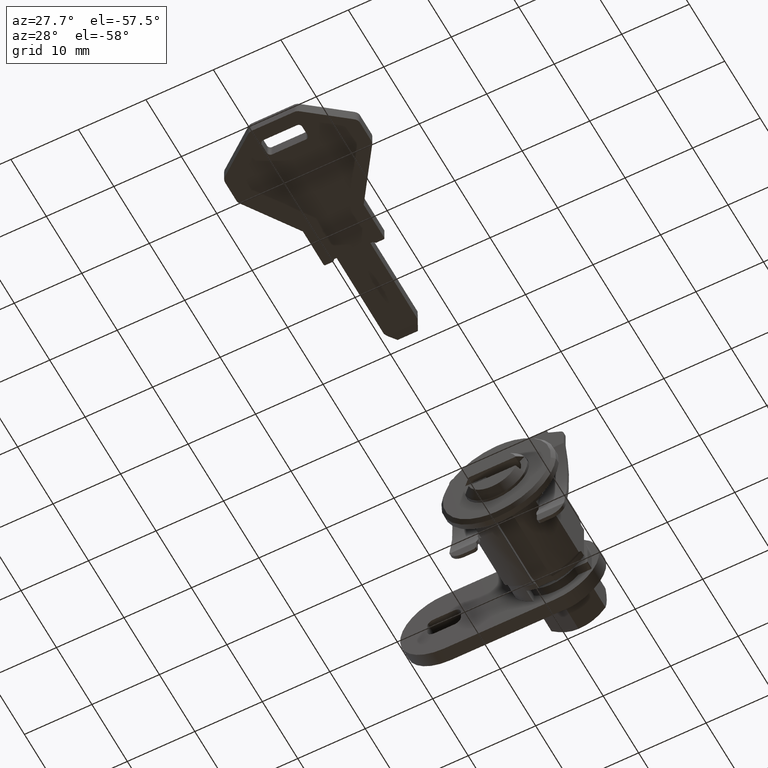
[diagram: clean part render]
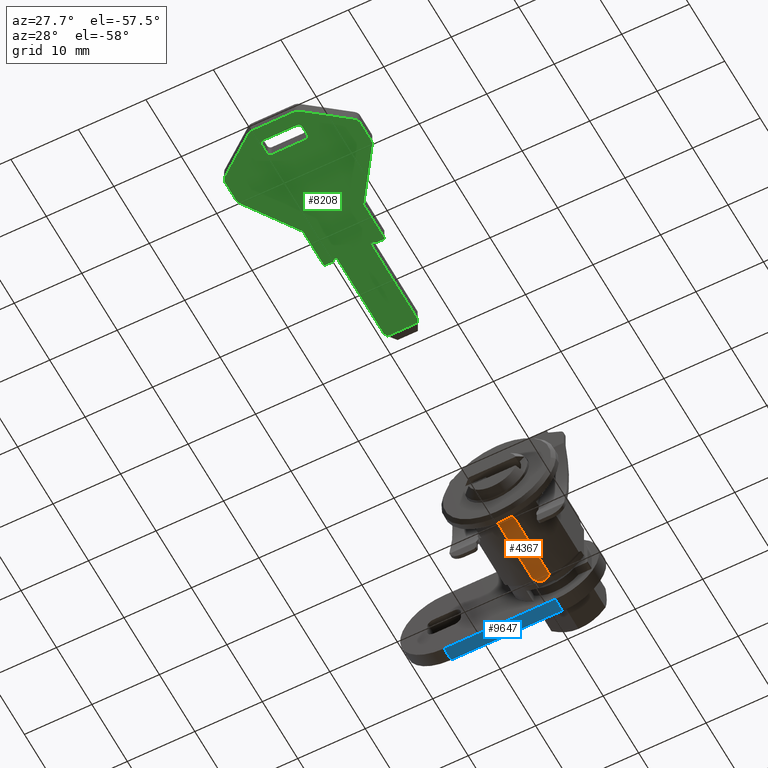
[diagram: same view with three faces highlighted in distinct colors, each labeled with its STEP entity id]
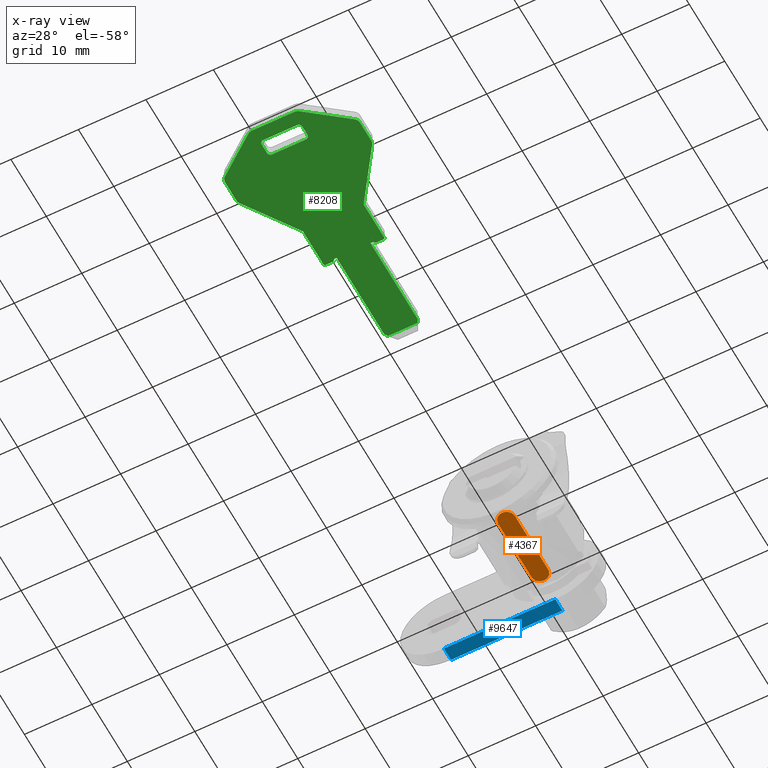
[diagram: x-ray of the same camera — body ghosted, the three highlighted faces saturated]
A machine part, auxiliary view with three faces highlighted in distinct colors.
The next image is the same camera in x-ray (body ghosted, the three faces saturated) — at least one of them is partly hidden behind the body in this view.
Their STEP definitions:

[orange] entity #4367 — the highlighted face is a freeform B-spline surface patch.
#4310=CARTESIAN_POINT('',(0.908092522967564,1.374874995154513,-6.249999999699271));
#4311=CARTESIAN_POINT('',(13.941907794873030,1.374874995154513,-6.249999999699271));
#4312=CARTESIAN_POINT('',(0.908092522967564,-1.374875062209704,-6.249999999699271));
#4313=CARTESIAN_POINT('',(13.941907794873030,-1.374875062209704,-6.249999999699271));
#4314=B_SPLINE_SURFACE_WITH_KNOTS('',1,1,((#4310,#4312),(#4311,#4313)),.UNSPECIFIED.,.F.,.F.,.U.,(2,2),(2,2),(0.0,13.033815271905469),(0.0,2.749750057364218),.UNSPECIFIED.);
#4315=CARTESIAN_POINT('',(12.099999999999000,-1.249999999999910,-6.249999999699220));
#4316=VERTEX_POINT('',#4315);
#4317=CARTESIAN_POINT('',(2.749999999999900,-1.249999999999966,-6.249999999699220));
#4318=VERTEX_POINT('',#4317);
#4319=CARTESIAN_POINT('',(12.099999999999000,-1.249999999999910,-6.249999999699220));
#4320=CARTESIAN_POINT('',(2.749999999999900,-1.249999999999966,-6.249999999699220));
#4321=QUASI_UNIFORM_CURVE('',1,(#4319,#4320),.UNSPECIFIED.,.F.,.U.);
#4322=EDGE_CURVE('',#4316,#4318,#4321,.T.);
#4323=ORIENTED_EDGE('',*,*,#4322,.T.);
#4324=CARTESIAN_POINT('',(2.749999999999885,1.249999999999976,-6.249999999699220));
#4325=VERTEX_POINT('',#4324);
#4326=CARTESIAN_POINT('',(2.749999999999885,-1.249999999999965,-6.249999999699220));
#4327=CARTESIAN_POINT('',(2.028312163512877,-1.249999999999966,-6.249999999699221));
#4328=CARTESIAN_POINT('',(1.667468245269368,-0.624999999999989,-6.249999999699220));
#4329=CARTESIAN_POINT('',(1.306624327025854,-4.606892E-015,-6.249999999699221));
#4330=CARTESIAN_POINT('',(1.667468245269360,0.624999999999985,-6.249999999699220));
#4331=CARTESIAN_POINT('',(2.028312163512867,1.249999999999975,-6.249999999699221));
#4332=CARTESIAN_POINT('',(2.749999999999885,1.249999999999975,-6.249999999699220));
#4340=(BOUNDED_CURVE()B_SPLINE_CURVE(2,(#4326,#4327,#4328,#4329,#4330,#4331,#4332),.UNSPECIFIED.,.F.,.U.)B_SPLINE_CURVE_WITH_KNOTS((3,2,2,3),(0.0,0.333333333333333,0.666666666666667,1.0),.UNSPECIFIED.)CURVE()GEOMETRIC_REPRESENTATION_ITEM()RATIONAL_B_SPLINE_CURVE((1.0,0.866025403784441,1.0,0.866025403784441,1.0,0.866025403784441,1.0))REPRESENTATION_ITEM(''));
#4341=EDGE_CURVE('',#4318,#4325,#4340,.T.);
#4342=ORIENTED_EDGE('',*,*,#4341,.T.);
#4343=CARTESIAN_POINT('',(12.099999999999000,1.250000000000000,-6.249999999699220));
#4344=VERTEX_POINT('',#4343);
#4345=CARTESIAN_POINT('',(2.749999999999885,1.249999999999976,-6.249999999699220));
#4346=CARTESIAN_POINT('',(12.099999999999000,1.250000000000000,-6.249999999699220));
#4347=QUASI_UNIFORM_CURVE('',1,(#4345,#4346),.UNSPECIFIED.,.F.,.U.);
#4348=EDGE_CURVE('',#4325,#4344,#4347,.T.);
#4349=ORIENTED_EDGE('',*,*,#4348,.T.);
#4350=CARTESIAN_POINT('',(12.099999999999000,1.250000000000000,-6.249999999699220));
#4351=CARTESIAN_POINT('',(13.349999999998914,1.249999999999919,-6.249999999699220));
#4352=CARTESIAN_POINT('',(13.349999999998911,4.717247E-015,-6.249999999699220));
#4353=CARTESIAN_POINT('',(13.349999999998914,-1.249999999999909,-6.249999999699220));
#4354=CARTESIAN_POINT('',(12.099999999999000,-1.249999999999909,-6.249999999699220));
#4362=(BOUNDED_CURVE()B_SPLINE_CURVE(2,(#4350,#4351,#4352,#4353,#4354),.UNSPECIFIED.,.F.,.U.)B_SPLINE_CURVE_WITH_KNOTS((3,2,3),(0.0,0.500000000000000,1.0),.UNSPECIFIED.)CURVE()GEOMETRIC_REPRESENTATION_ITEM()RATIONAL_B_SPLINE_CURVE((1.0,0.707106781186547,1.0,0.707106781186547,1.0))REPRESENTATION_ITEM(''));
#4363=EDGE_CURVE('',#4344,#4316,#4362,.T.);
#4364=ORIENTED_EDGE('',*,*,#4363,.T.);
#4365=EDGE_LOOP('',(#4323,#4342,#4349,#4364));
#4366=FACE_OUTER_BOUND('',#4365,.T.);
#4367=ADVANCED_FACE('',(#4366),#4314,.T.);

[blue] entity #9647 — the highlighted face is a freeform B-spline surface patch.
#8953=CARTESIAN_POINT('',(16.500000000000000,16.499999999999151,-6.499999999799400));
#8954=VERTEX_POINT('',#8953);
#8970=CARTESIAN_POINT('',(16.500000000000000,-7.685801E-013,-6.500000000143859));
#8971=VERTEX_POINT('',#8970);
#8972=CARTESIAN_POINT('',(16.500000000000000,-7.685801E-013,-6.500000000143859));
#8973=CARTESIAN_POINT('',(16.500000000000000,16.499999999999151,-6.499999999799400));
#8974=QUASI_UNIFORM_CURVE('',1,(#8972,#8973),.UNSPECIFIED.,.F.,.U.);
#8975=EDGE_CURVE('',#8971,#8954,#8974,.T.);
#9191=CARTESIAN_POINT('',(18.500000000000000,-7.685801E-013,-6.500000000143859));
#9192=VERTEX_POINT('',#9191);
#9208=CARTESIAN_POINT('',(18.500000000000000,16.499999999999151,-6.499999999799400));
#9209=VERTEX_POINT('',#9208);
#9210=CARTESIAN_POINT('',(18.500000000000000,-7.685801E-013,-6.500000000143859));
#9211=CARTESIAN_POINT('',(18.500000000000000,16.499999999999151,-6.499999999799400));
#9212=QUASI_UNIFORM_CURVE('',1,(#9210,#9211),.UNSPECIFIED.,.F.,.U.);
#9213=EDGE_CURVE('',#9192,#9209,#9212,.T.);
#9480=CARTESIAN_POINT('',(18.500000000000000,16.499999999999151,-6.499999999799400));
#9481=CARTESIAN_POINT('',(16.500000000000000,16.499999999999151,-6.499999999799400));
#9482=QUASI_UNIFORM_CURVE('',1,(#9480,#9481),.UNSPECIFIED.,.F.,.U.);
#9483=EDGE_CURVE('',#9209,#8954,#9482,.T.);
#9632=CARTESIAN_POINT('',(16.400100003876389,-0.824174968020565,-6.499999999799400));
#9633=CARTESIAN_POINT('',(18.599900049767790,-0.824174968020565,-6.499999999799400));
#9634=CARTESIAN_POINT('',(16.400100003876389,17.324175410583440,-6.499999999799400));
#9635=CARTESIAN_POINT('',(18.599900049767790,17.324175410583440,-6.499999999799400));
#9636=B_SPLINE_SURFACE_WITH_KNOTS('',1,1,((#9632,#9634),(#9633,#9635)),.UNSPECIFIED.,.F.,.F.,.U.,(2,2),(2,2),(0.0,2.199800045891404),(0.0,18.148350378604000),.UNSPECIFIED.);
#9637=ORIENTED_EDGE('',*,*,#8975,.T.);
#9638=ORIENTED_EDGE('',*,*,#9483,.F.);
#9639=ORIENTED_EDGE('',*,*,#9213,.F.);
#9640=CARTESIAN_POINT('',(18.500000000000000,-7.685801E-013,-6.500000000143859));
#9641=CARTESIAN_POINT('',(16.500000000000000,-7.685801E-013,-6.500000000143859));
#9642=QUASI_UNIFORM_CURVE('',1,(#9640,#9641),.UNSPECIFIED.,.F.,.U.);
#9643=EDGE_CURVE('',#9192,#8971,#9642,.T.);
#9644=ORIENTED_EDGE('',*,*,#9643,.T.);
#9645=EDGE_LOOP('',(#9637,#9638,#9639,#9644));
#9646=FACE_OUTER_BOUND('',#9645,.T.);
#9647=ADVANCED_FACE('',(#9646),#9636,.F.);

[green] entity #8208 — the highlighted face is a freeform B-spline surface patch.
#6884=CARTESIAN_POINT('',(-26.804951252770600,-2.344554117826425,-0.899999999849697));
#6885=VERTEX_POINT('',#6884);
#6891=CARTESIAN_POINT('',(-26.804951253183500,2.114778544594520,-0.900000000000000));
#6892=VERTEX_POINT('',#6891);
#6893=CARTESIAN_POINT('',(-26.804951253183500,2.114778544594520,-0.900000000000000));
#6894=CARTESIAN_POINT('',(-26.804951252770600,-2.344554117826425,-0.899999999849697));
#6895=QUASI_UNIFORM_CURVE('',1,(#6893,#6894),.UNSPECIFIED.,.F.,.U.);
#6896=EDGE_CURVE('',#6892,#6885,#6895,.T.);
#6927=CARTESIAN_POINT('',(-58.872900445619287,2.385112213383990,-0.899999999859347));
#6928=VERTEX_POINT('',#6927);
#6951=CARTESIAN_POINT('',(-59.372900445619301,2.885112213383990,-0.899999999859347));
#6952=VERTEX_POINT('',#6951);
#6958=CARTESIAN_POINT('',(-58.872900445619287,2.385112213383990,-0.899999999859347));
#6959=CARTESIAN_POINT('',(-58.872900445619294,2.885112213383990,-0.899999999859347));
#6960=CARTESIAN_POINT('',(-59.372900445619301,2.885112213383990,-0.899999999859347));
#6968=(BOUNDED_CURVE()B_SPLINE_CURVE(2,(#6958,#6959,#6960),.UNSPECIFIED.,.F.,.U.)CURVE()GEOMETRIC_REPRESENTATION_ITEM()QUASI_UNIFORM_CURVE()RATIONAL_B_SPLINE_CURVE((1.0,0.707106781186548,1.0))REPRESENTATION_ITEM(''));
#6969=EDGE_CURVE('',#6928,#6952,#6968,.T.);
#6979=CARTESIAN_POINT('',(-58.872900445619997,-2.614887786616010,-0.899999999859347));
#6980=VERTEX_POINT('',#6979);
#6994=CARTESIAN_POINT('',(-58.872900445619997,-2.614887786616010,-0.899999999859347));
#6995=CARTESIAN_POINT('',(-58.872900445619287,2.385112213383990,-0.899999999859347));
#6996=QUASI_UNIFORM_CURVE('',1,(#6994,#6995),.UNSPECIFIED.,.F.,.U.);
#6997=EDGE_CURVE('',#6980,#6928,#6996,.T.);
#7016=CARTESIAN_POINT('',(-59.372900445619997,-3.114887786616010,-0.899999999859347));
#7017=VERTEX_POINT('',#7016);
#7039=CARTESIAN_POINT('',(-59.372900445619997,-3.114887786616010,-0.899999999859347));
#7040=CARTESIAN_POINT('',(-58.872900445619997,-3.114887786616011,-0.899999999859347));
#7041=CARTESIAN_POINT('',(-58.872900445619997,-2.614887786616010,-0.899999999859347));
#7049=(BOUNDED_CURVE()B_SPLINE_CURVE(2,(#7039,#7040,#7041),.UNSPECIFIED.,.F.,.U.)CURVE()GEOMETRIC_REPRESENTATION_ITEM()QUASI_UNIFORM_CURVE()RATIONAL_B_SPLINE_CURVE((1.0,0.707106781186548,1.0))REPRESENTATION_ITEM(''));
#7050=EDGE_CURVE('',#7017,#6980,#7049,.T.);
#7060=CARTESIAN_POINT('',(-60.872900445619997,-3.114887786616010,-0.899999999859347));
#7061=VERTEX_POINT('',#7060);
#7075=CARTESIAN_POINT('',(-60.872900445619997,-3.114887786616010,-0.899999999859347));
#7076=CARTESIAN_POINT('',(-59.372900445619997,-3.114887786616010,-0.899999999859347));
#7077=QUASI_UNIFORM_CURVE('',1,(#7075,#7076),.UNSPECIFIED.,.F.,.U.);
#7078=EDGE_CURVE('',#7061,#7017,#7077,.T.);
#7097=CARTESIAN_POINT('',(-61.372900445619997,-2.614887786615895,-0.899999999859347));
#7098=VERTEX_POINT('',#7097);
#7122=CARTESIAN_POINT('',(-61.372900445619997,-2.614887786616010,-0.899999999859347));
#7123=CARTESIAN_POINT('',(-61.372900445619997,-3.114887786616011,-0.899999999859347));
#7124=CARTESIAN_POINT('',(-60.872900445619997,-3.114887786616010,-0.899999999859347));
#7132=(BOUNDED_CURVE()B_SPLINE_CURVE(2,(#7122,#7123,#7124),.UNSPECIFIED.,.F.,.U.)CURVE()GEOMETRIC_REPRESENTATION_ITEM()QUASI_UNIFORM_CURVE()RATIONAL_B_SPLINE_CURVE((1.0,0.707106781186548,1.0))REPRESENTATION_ITEM(''));
#7133=EDGE_CURVE('',#7098,#7061,#7132,.T.);
#7143=CARTESIAN_POINT('',(-61.372900445619301,2.385112213383990,-0.899999999859347));
#7144=VERTEX_POINT('',#7143);
#7158=CARTESIAN_POINT('',(-61.372900445619301,2.385112213383990,-0.899999999859347));
#7159=CARTESIAN_POINT('',(-61.372900445619997,-2.614887786615895,-0.899999999859347));
#7160=QUASI_UNIFORM_CURVE('',1,(#7158,#7159),.UNSPECIFIED.,.F.,.U.);
#7161=EDGE_CURVE('',#7144,#7098,#7160,.T.);
#7180=CARTESIAN_POINT('',(-60.872900445619301,2.885112213383990,-0.899999999859347));
#7181=VERTEX_POINT('',#7180);
#7203=CARTESIAN_POINT('',(-60.872900445619301,2.885112213383990,-0.899999999859347));
#7204=CARTESIAN_POINT('',(-61.372900445619294,2.885112213383990,-0.899999999859347));
#7205=CARTESIAN_POINT('',(-61.372900445619301,2.385112213383990,-0.899999999859347));
#7213=(BOUNDED_CURVE()B_SPLINE_CURVE(2,(#7203,#7204,#7205),.UNSPECIFIED.,.F.,.U.)CURVE()GEOMETRIC_REPRESENTATION_ITEM()QUASI_UNIFORM_CURVE()RATIONAL_B_SPLINE_CURVE((1.0,0.707106781186548,1.0))REPRESENTATION_ITEM(''));
#7214=EDGE_CURVE('',#7181,#7144,#7213,.T.);
#7231=CARTESIAN_POINT('',(-59.372900445619301,2.885112213383990,-0.899999999859347));
#7232=CARTESIAN_POINT('',(-60.872900445619301,2.885112213383990,-0.899999999859347));
#7233=QUASI_UNIFORM_CURVE('',1,(#7231,#7232),.UNSPECIFIED.,.F.,.U.);
#7234=EDGE_CURVE('',#6952,#7181,#7233,.T.);
#7253=CARTESIAN_POINT('',(-40.372900445619052,4.185112213384000,-0.899999999849688));
#7254=VERTEX_POINT('',#7253);
#7255=CARTESIAN_POINT('',(-40.572900445619098,4.385112213384115,-0.899999999849688));
#7256=VERTEX_POINT('',#7255);
#7257=CARTESIAN_POINT('',(-40.372900445619102,4.185112213384000,-0.899999999849688));
#7258=CARTESIAN_POINT('',(-40.372900445619067,4.267954925858652,-0.899999999849688));
#7259=CARTESIAN_POINT('',(-40.431479089381753,4.326533569621384,-0.899999999849688));
#7260=CARTESIAN_POINT('',(-40.490057733144447,4.385112213384115,-0.899999999849688));
#7261=CARTESIAN_POINT('',(-40.572900445619098,4.385112213384115,-0.899999999849688));
#7269=(BOUNDED_CURVE()B_SPLINE_CURVE(2,(#7257,#7258,#7259,#7260,#7261),.UNSPECIFIED.,.F.,.U.)B_SPLINE_CURVE_WITH_KNOTS((3,2,3),(0.0,0.500000000000000,1.0),.UNSPECIFIED.)CURVE()GEOMETRIC_REPRESENTATION_ITEM()RATIONAL_B_SPLINE_CURVE((1.0,0.923879532511232,1.0,0.923879532511232,1.0))REPRESENTATION_ITEM(''));
#7270=EDGE_CURVE('',#7254,#7256,#7269,.T.);
#7309=CARTESIAN_POINT('',(-40.372900445620097,3.035112213384395,-0.899999999849688));
#7310=VERTEX_POINT('',#7309);
#7311=CARTESIAN_POINT('',(-40.372900445620097,3.035112213384395,-0.899999999849688));
#7312=CARTESIAN_POINT('',(-40.372900445619052,4.185112213384000,-0.899999999849688));
#7313=QUASI_UNIFORM_CURVE('',1,(#7311,#7312),.UNSPECIFIED.,.F.,.U.);
#7314=EDGE_CURVE('',#7310,#7254,#7313,.T.);
#7337=CARTESIAN_POINT('',(-40.672900445620002,2.735112213384015,-0.899999999849688));
#7338=VERTEX_POINT('',#7337);
#7339=CARTESIAN_POINT('',(-40.672900445620002,2.735112213384015,-0.899999999849688));
#7340=CARTESIAN_POINT('',(-40.372900445620097,3.035112213384395,-0.899999999849688));
#7341=QUASI_UNIFORM_CURVE('',1,(#7339,#7340),.UNSPECIFIED.,.F.,.U.);
#7342=EDGE_CURVE('',#7338,#7310,#7341,.T.);
#7365=CARTESIAN_POINT('',(-40.672900445620002,2.385112213383990,-0.899999999849688));
#7366=VERTEX_POINT('',#7365);
#7367=CARTESIAN_POINT('',(-40.672900445620002,2.385112213383990,-0.899999999849688));
#7368=CARTESIAN_POINT('',(-40.672900445620002,2.735112213384015,-0.899999999849688));
#7369=QUASI_UNIFORM_CURVE('',1,(#7367,#7368),.UNSPECIFIED.,.F.,.U.);
#7370=EDGE_CURVE('',#7366,#7338,#7369,.T.);
#7393=CARTESIAN_POINT('',(-27.335510951127748,2.385112213382910,-0.899999999849688));
#7394=VERTEX_POINT('',#7393);
#7395=CARTESIAN_POINT('',(-27.335510951127748,2.385112213382910,-0.899999999849688));
#7396=CARTESIAN_POINT('',(-40.672900445620002,2.385112213383990,-0.899999999849688));
#7397=QUASI_UNIFORM_CURVE('',1,(#7395,#7396),.UNSPECIFIED.,.F.,.U.);
#7398=EDGE_CURVE('',#7394,#7366,#7397,.T.);
#7421=CARTESIAN_POINT('',(-40.672900445620002,-2.614887786615895,-0.899999999849688));
#7422=VERTEX_POINT('',#7421);
#7423=CARTESIAN_POINT('',(-27.335510951130050,-2.614887786616010,-0.899999999849688));
#7424=VERTEX_POINT('',#7423);
#7425=CARTESIAN_POINT('',(-40.672900445620002,-2.614887786615895,-0.899999999849688));
#7426=CARTESIAN_POINT('',(-27.335510951130050,-2.614887786616010,-0.899999999849688));
#7427=QUASI_UNIFORM_CURVE('',1,(#7425,#7426),.UNSPECIFIED.,.F.,.U.);
#7428=EDGE_CURVE('',#7422,#7424,#7427,.T.);
#7457=CARTESIAN_POINT('',(-40.672900445620002,-2.964887786616005,-0.899999999849688));
#7458=VERTEX_POINT('',#7457);
#7459=CARTESIAN_POINT('',(-40.672900445620002,-2.964887786616005,-0.899999999849688));
#7460=CARTESIAN_POINT('',(-40.672900445620002,-2.614887786615895,-0.899999999849688));
#7461=QUASI_UNIFORM_CURVE('',1,(#7459,#7460),.UNSPECIFIED.,.F.,.U.);
#7462=EDGE_CURVE('',#7458,#7422,#7461,.T.);
#7485=CARTESIAN_POINT('',(-40.372900445620047,-3.264887786616300,-0.899999999849688));
#7486=VERTEX_POINT('',#7485);
#7487=CARTESIAN_POINT('',(-40.372900445620047,-3.264887786616300,-0.899999999849688));
#7488=CARTESIAN_POINT('',(-40.672900445620002,-2.964887786616005,-0.899999999849688));
#7489=QUASI_UNIFORM_CURVE('',1,(#7487,#7488),.UNSPECIFIED.,.F.,.U.);
#7490=EDGE_CURVE('',#7486,#7458,#7489,.T.);
#7513=CARTESIAN_POINT('',(-40.372900445620203,-4.414887786615990,-0.899999999849688));
#7514=VERTEX_POINT('',#7513);
#7515=CARTESIAN_POINT('',(-40.372900445620203,-4.414887786615990,-0.899999999849688));
#7516=CARTESIAN_POINT('',(-40.372900445620047,-3.264887786616300,-0.899999999849688));
#7517=QUASI_UNIFORM_CURVE('',1,(#7515,#7516),.UNSPECIFIED.,.F.,.U.);
#7518=EDGE_CURVE('',#7514,#7486,#7517,.T.);
#7550=CARTESIAN_POINT('',(-40.572900445620249,-4.614887786616010,-0.899999999849688));
#7551=VERTEX_POINT('',#7550);
#7552=CARTESIAN_POINT('',(-40.572900445620249,-4.614887786615989,-0.899999999849688));
#7553=CARTESIAN_POINT('',(-40.490057733145619,-4.614887786616010,-0.899999999849688));
#7554=CARTESIAN_POINT('',(-40.431479089382911,-4.556309142853317,-0.899999999849688));
#7555=CARTESIAN_POINT('',(-40.372900445620196,-4.497730499090623,-0.899999999849688));
#7556=CARTESIAN_POINT('',(-40.372900445620203,-4.414887786615990,-0.899999999849688));
#7564=(BOUNDED_CURVE()B_SPLINE_CURVE(2,(#7552,#7553,#7554,#7555,#7556),.UNSPECIFIED.,.F.,.U.)B_SPLINE_CURVE_WITH_KNOTS((3,2,3),(0.0,0.500000000000000,1.0),.UNSPECIFIED.)CURVE()GEOMETRIC_REPRESENTATION_ITEM()RATIONAL_B_SPLINE_CURVE((1.0,0.923879532511264,1.0,0.923879532511264,1.0))REPRESENTATION_ITEM(''));
#7565=EDGE_CURVE('',#7551,#7514,#7564,.T.);
#7598=CARTESIAN_POINT('',(-46.372900445620203,-4.614887786616010,-0.899999999849688));
#7599=VERTEX_POINT('',#7598);
#7600=CARTESIAN_POINT('',(-46.372900445620203,-4.614887786616010,-0.899999999849688));
#7601=CARTESIAN_POINT('',(-40.572900445620249,-4.614887786616010,-0.899999999849688));
#7602=QUASI_UNIFORM_CURVE('',1,(#7600,#7601),.UNSPECIFIED.,.F.,.U.);
#7603=EDGE_CURVE('',#7599,#7551,#7602,.T.);
#7626=CARTESIAN_POINT('',(-54.116961426285300,-9.938929710815751,-0.899999999849688));
#7627=VERTEX_POINT('',#7626);
#7628=CARTESIAN_POINT('',(-54.116961426285300,-9.938929710815751,-0.899999999849688));
#7629=CARTESIAN_POINT('',(-46.372900445620203,-4.614887786616010,-0.899999999849688));
#7630=QUASI_UNIFORM_CURVE('',1,(#7628,#7629),.UNSPECIFIED.,.F.,.U.);
#7631=EDGE_CURVE('',#7627,#7599,#7630,.T.);
#7663=CARTESIAN_POINT('',(-54.683490249171797,-10.114887786616000,-0.899999999849688));
#7664=VERTEX_POINT('',#7663);
#7665=CARTESIAN_POINT('',(-54.683490249171797,-10.114887786616009,-0.899999999849688));
#7666=CARTESIAN_POINT('',(-54.372900445631473,-10.114887786616011,-0.899999999849688));
#7667=CARTESIAN_POINT('',(-54.116961426285293,-9.938929710815764,-0.899999999849688));
#7675=(BOUNDED_CURVE()B_SPLINE_CURVE(2,(#7665,#7666,#7667),.UNSPECIFIED.,.F.,.U.)CURVE()GEOMETRIC_REPRESENTATION_ITEM()QUASI_UNIFORM_CURVE()RATIONAL_B_SPLINE_CURVE((1.0,0.954997885913825,1.0))REPRESENTATION_ITEM(''));
#7676=EDGE_CURVE('',#7664,#7627,#7675,.T.);
#7707=CARTESIAN_POINT('',(-57.880498948164913,-10.114887786616000,-0.899999999849688));
#7708=VERTEX_POINT('',#7707);
#7709=CARTESIAN_POINT('',(-57.880498948164913,-10.114887786616000,-0.899999999849688));
#7710=CARTESIAN_POINT('',(-54.683490249171797,-10.114887786616000,-0.899999999849688));
#7711=QUASI_UNIFORM_CURVE('',1,(#7709,#7710),.UNSPECIFIED.,.F.,.U.);
#7712=EDGE_CURVE('',#7708,#7664,#7711,.T.);
#7744=CARTESIAN_POINT('',(-58.673122937269099,-9.724598547466091,-0.899999999849688));
#7745=VERTEX_POINT('',#7744);
#7746=CARTESIAN_POINT('',(-58.673122937269163,-9.724598547466142,-0.899999999849688));
#7747=CARTESIAN_POINT('',(-58.372900445615080,-10.114887786616011,-0.899999999849688));
#7748=CARTESIAN_POINT('',(-57.880498948164913,-10.114887786616009,-0.899999999849688));
#7756=(BOUNDED_CURVE()B_SPLINE_CURVE(2,(#7746,#7747,#7748),.UNSPECIFIED.,.F.,.U.)CURVE()GEOMETRIC_REPRESENTATION_ITEM()QUASI_UNIFORM_CURVE()RATIONAL_B_SPLINE_CURVE((1.0,0.897137325288089,1.0))REPRESENTATION_ITEM(''));
#7757=EDGE_CURVE('',#7745,#7708,#7756,.T.);
#7788=CARTESIAN_POINT('',(-63.165524434724411,-3.884476600780175,-0.899999999849688));
#7789=VERTEX_POINT('',#7788);
#7790=CARTESIAN_POINT('',(-63.165524434724411,-3.884476600780175,-0.899999999849688));
#7791=CARTESIAN_POINT('',(-58.673122937269099,-9.724598547466091,-0.899999999849688));
#7792=QUASI_UNIFORM_CURVE('',1,(#7790,#7791),.UNSPECIFIED.,.F.,.U.);
#7793=EDGE_CURVE('',#7789,#7745,#7792,.T.);
#7825=CARTESIAN_POINT('',(-63.372900445620097,-3.274765839930010,-0.899999999849688));
#7826=VERTEX_POINT('',#7825);
#7827=CARTESIAN_POINT('',(-63.372900445620090,-3.274765839930100,-0.899999999849688));
#7828=CARTESIAN_POINT('',(-63.372900445620097,-3.614887786616040,-0.899999999849688));
#7829=CARTESIAN_POINT('',(-63.165524434724411,-3.884476600780172,-0.899999999849688));
#7837=(BOUNDED_CURVE()B_SPLINE_CURVE(2,(#7827,#7828,#7829),.UNSPECIFIED.,.F.,.U.)CURVE()GEOMETRIC_REPRESENTATION_ITEM()QUASI_UNIFORM_CURVE()RATIONAL_B_SPLINE_CURVE((1.0,0.946737553154069,1.0))REPRESENTATION_ITEM(''));
#7838=EDGE_CURVE('',#7826,#7789,#7837,.T.);
#7869=CARTESIAN_POINT('',(-63.372900445619202,3.044990266698195,-0.899999999849688));
#7870=VERTEX_POINT('',#7869);
#7871=CARTESIAN_POINT('',(-63.372900445619202,3.044990266698195,-0.899999999849688));
#7872=CARTESIAN_POINT('',(-63.372900445620097,-3.274765839930010,-0.899999999849688));
#7873=QUASI_UNIFORM_CURVE('',1,(#7871,#7872),.UNSPECIFIED.,.F.,.U.);
#7874=EDGE_CURVE('',#7870,#7826,#7873,.T.);
#7906=CARTESIAN_POINT('',(-63.165524434723700,3.654701027548100,-0.899999999849688));
#7907=VERTEX_POINT('',#7906);
#7908=CARTESIAN_POINT('',(-63.165524434723658,3.654701027548070,-0.899999999849688));
#7909=CARTESIAN_POINT('',(-63.372900445619202,3.385112213383996,-0.899999999849688));
#7910=CARTESIAN_POINT('',(-63.372900445619202,3.044990266698195,-0.899999999849688));
#7918=(BOUNDED_CURVE()B_SPLINE_CURVE(2,(#7908,#7909,#7910),.UNSPECIFIED.,.F.,.U.)CURVE()GEOMETRIC_REPRESENTATION_ITEM()QUASI_UNIFORM_CURVE()RATIONAL_B_SPLINE_CURVE((1.0,0.946737553154109,1.0))REPRESENTATION_ITEM(''));
#7919=EDGE_CURVE('',#7907,#7870,#7918,.T.);
#7950=CARTESIAN_POINT('',(-58.673122937271899,9.494822974233800,-0.899999999849688));
#7951=VERTEX_POINT('',#7950);
#7952=CARTESIAN_POINT('',(-58.673122937271899,9.494822974233800,-0.899999999849688));
#7953=CARTESIAN_POINT('',(-63.165524434723700,3.654701027548100,-0.899999999849688));
#7954=QUASI_UNIFORM_CURVE('',1,(#7952,#7953),.UNSPECIFIED.,.F.,.U.);
#7955=EDGE_CURVE('',#7951,#7907,#7954,.T.);
#7987=CARTESIAN_POINT('',(-57.880498948167400,9.885112213383989,-0.899999999849688));
#7988=VERTEX_POINT('',#7987);
#7989=CARTESIAN_POINT('',(-57.880498948167400,9.885112213383989,-0.899999999849688));
#7990=CARTESIAN_POINT('',(-58.372900445617816,9.885112213383989,-0.899999999849688));
#7991=CARTESIAN_POINT('',(-58.673122937271913,9.494822974233806,-0.899999999849688));
#7999=(BOUNDED_CURVE()B_SPLINE_CURVE(2,(#7989,#7990,#7991),.UNSPECIFIED.,.F.,.U.)CURVE()GEOMETRIC_REPRESENTATION_ITEM()QUASI_UNIFORM_CURVE()RATIONAL_B_SPLINE_CURVE((1.0,0.897137325288001,1.0))REPRESENTATION_ITEM(''));
#8000=EDGE_CURVE('',#7988,#7951,#7999,.T.);
#8031=CARTESIAN_POINT('',(-54.683490249160698,9.885112213384110,-0.899999999849688));
#8032=VERTEX_POINT('',#8031);
#8033=CARTESIAN_POINT('',(-54.683490249160698,9.885112213384110,-0.899999999849688));
#8034=CARTESIAN_POINT('',(-57.880498948167400,9.885112213383989,-0.899999999849688));
#8035=QUASI_UNIFORM_CURVE('',1,(#8033,#8034),.UNSPECIFIED.,.F.,.U.);
#8036=EDGE_CURVE('',#8032,#7988,#8035,.T.);
#8068=CARTESIAN_POINT('',(-54.116961426273697,9.709154137583399,-0.899999999849688));
#8069=VERTEX_POINT('',#8068);
#8070=CARTESIAN_POINT('',(-54.116961426273647,9.709154137583473,-0.899999999849688));
#8071=CARTESIAN_POINT('',(-54.372900445620004,9.885112213384099,-0.899999999849688));
#8072=CARTESIAN_POINT('',(-54.683490249160698,9.885112213384099,-0.899999999849688));
#8080=(BOUNDED_CURVE()B_SPLINE_CURVE(2,(#8070,#8071,#8072),.UNSPECIFIED.,.F.,.U.)CURVE()GEOMETRIC_REPRESENTATION_ITEM()QUASI_UNIFORM_CURVE()RATIONAL_B_SPLINE_CURVE((1.0,0.954997885913727,1.0))REPRESENTATION_ITEM(''));
#8081=EDGE_CURVE('',#8069,#8032,#8080,.T.);
#8112=CARTESIAN_POINT('',(-46.372900445619003,4.385112213383990,-0.899999999849688));
#8113=VERTEX_POINT('',#8112);
#8114=CARTESIAN_POINT('',(-46.372900445619003,4.385112213383990,-0.899999999849688));
#8115=CARTESIAN_POINT('',(-54.116961426273697,9.709154137583399,-0.899999999849688));
#8116=QUASI_UNIFORM_CURVE('',1,(#8114,#8115),.UNSPECIFIED.,.F.,.U.);
#8117=EDGE_CURVE('',#8113,#8069,#8116,.T.);
#8140=CARTESIAN_POINT('',(-40.572900445619098,4.385112213384115,-0.899999999849688));
#8141=CARTESIAN_POINT('',(-46.372900445619003,4.385112213383990,-0.899999999849688));
#8142=QUASI_UNIFORM_CURVE('',1,(#8140,#8141),.UNSPECIFIED.,.F.,.U.);
#8143=EDGE_CURVE('',#7256,#8113,#8142,.T.);
#8155=CARTESIAN_POINT('',(-65.199471153295875,10.884111799128860,-0.899999999849706));
#8156=CARTESIAN_POINT('',(-24.978381198980710,10.884111799128860,-0.899999999849706));
#8157=CARTESIAN_POINT('',(-65.199471153295875,-11.113888266430410,-0.899999999849706));
#8158=CARTESIAN_POINT('',(-24.978381198980710,-11.113888266430410,-0.899999999849706));
#8159=B_SPLINE_SURFACE_WITH_KNOTS('',1,1,((#8155,#8157),(#8156,#8158)),.UNSPECIFIED.,.F.,.F.,.U.,(2,2),(2,2),(0.0,40.221089954315161),(0.0,21.998000065559271),.UNSPECIFIED.);
#8160=ORIENTED_EDGE('',*,*,#6896,.T.);
#8161=CARTESIAN_POINT('',(-27.335510951130050,-2.614887786616010,-0.899999999849688));
#8162=CARTESIAN_POINT('',(-26.804951252770600,-2.344554117826425,-0.899999999849697));
#8163=QUASI_UNIFORM_CURVE('',1,(#8161,#8162),.UNSPECIFIED.,.F.,.U.);
#8164=EDGE_CURVE('',#7424,#6885,#8163,.T.);
#8165=ORIENTED_EDGE('',*,*,#8164,.F.);
#8166=ORIENTED_EDGE('',*,*,#7428,.F.);
#8167=ORIENTED_EDGE('',*,*,#7462,.F.);
#8168=ORIENTED_EDGE('',*,*,#7490,.F.);
#8169=ORIENTED_EDGE('',*,*,#7518,.F.);
#8170=ORIENTED_EDGE('',*,*,#7565,.F.);
#8171=ORIENTED_EDGE('',*,*,#7603,.F.);
#8172=ORIENTED_EDGE('',*,*,#7631,.F.);
#8173=ORIENTED_EDGE('',*,*,#7676,.F.);
#8174=ORIENTED_EDGE('',*,*,#7712,.F.);
#8175=ORIENTED_EDGE('',*,*,#7757,.F.);
#8176=ORIENTED_EDGE('',*,*,#7793,.F.);
#8177=ORIENTED_EDGE('',*,*,#7838,.F.);
#8178=ORIENTED_EDGE('',*,*,#7874,.F.);
#8179=ORIENTED_EDGE('',*,*,#7919,.F.);
#8180=ORIENTED_EDGE('',*,*,#7955,.F.);
#8181=ORIENTED_EDGE('',*,*,#8000,.F.);
#8182=ORIENTED_EDGE('',*,*,#8036,.F.);
#8183=ORIENTED_EDGE('',*,*,#8081,.F.);
#8184=ORIENTED_EDGE('',*,*,#8117,.F.);
#8185=ORIENTED_EDGE('',*,*,#8143,.F.);
#8186=ORIENTED_EDGE('',*,*,#7270,.F.);
#8187=ORIENTED_EDGE('',*,*,#7314,.F.);
#8188=ORIENTED_EDGE('',*,*,#7342,.F.);
#8189=ORIENTED_EDGE('',*,*,#7370,.F.);
#8190=ORIENTED_EDGE('',*,*,#7398,.F.);
#8191=CARTESIAN_POINT('',(-26.804951253183500,2.114778544594520,-0.900000000000000));
#8192=CARTESIAN_POINT('',(-27.335510951127748,2.385112213382910,-0.899999999849688));
#8193=QUASI_UNIFORM_CURVE('',1,(#8191,#8192),.UNSPECIFIED.,.F.,.U.);
#8194=EDGE_CURVE('',#6892,#7394,#8193,.T.);
#8195=ORIENTED_EDGE('',*,*,#8194,.F.);
#8196=EDGE_LOOP('',(#8160,#8165,#8166,#8167,#8168,#8169,#8170,#8171,#8172,#8173,#8174,#8175,#8176,#8177,#8178,#8179,#8180,#8181,#8182,#8183,#8184,#8185,#8186,#8187,#8188,#8189,#8190,#8195));
#8197=FACE_OUTER_BOUND('',#8196,.T.);
#8198=ORIENTED_EDGE('',*,*,#6969,.T.);
#8199=ORIENTED_EDGE('',*,*,#7234,.T.);
#8200=ORIENTED_EDGE('',*,*,#7214,.T.);
#8201=ORIENTED_EDGE('',*,*,#7161,.T.);
#8202=ORIENTED_EDGE('',*,*,#7133,.T.);
#8203=ORIENTED_EDGE('',*,*,#7078,.T.);
#8204=ORIENTED_EDGE('',*,*,#7050,.T.);
#8205=ORIENTED_EDGE('',*,*,#6997,.T.);
#8206=EDGE_LOOP('',(#8198,#8199,#8200,#8201,#8202,#8203,#8204,#8205));
#8207=FACE_BOUND('',#8206,.T.);
#8208=ADVANCED_FACE('',(#8197,#8207),#8159,.T.);